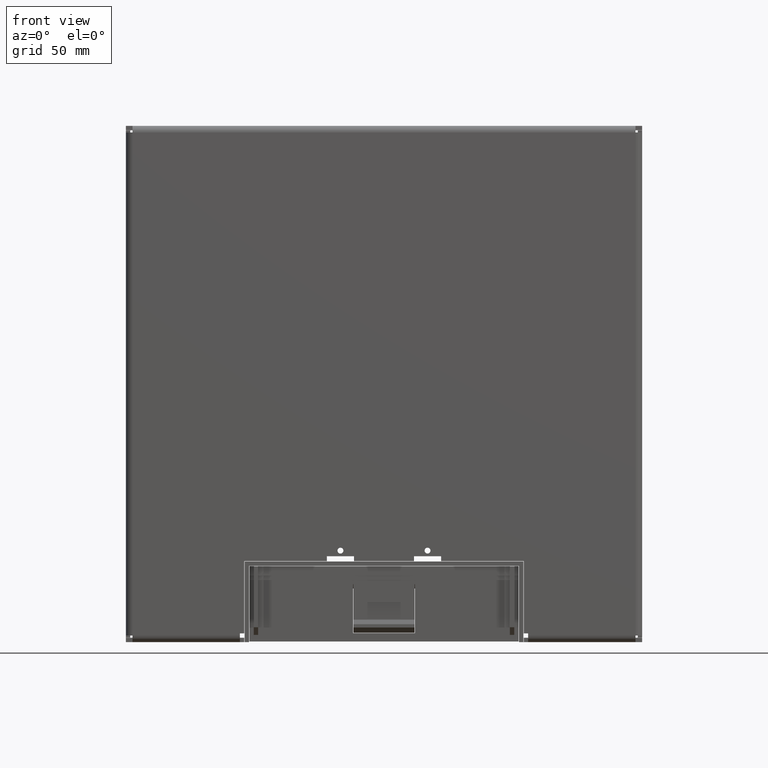
[diagram: clean part render]
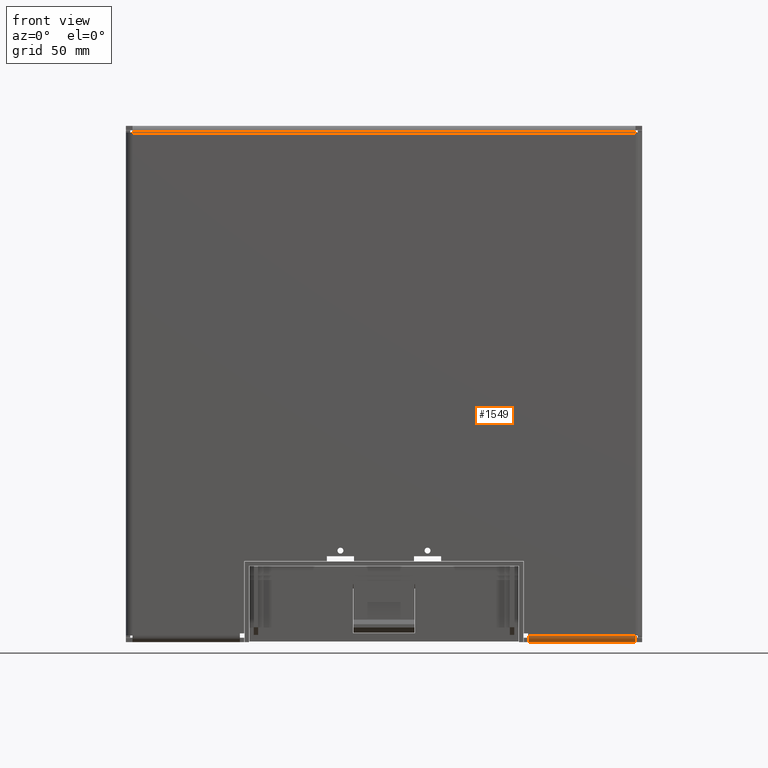
[diagram: same view with one face highlighted and labeled with its STEP entity id]
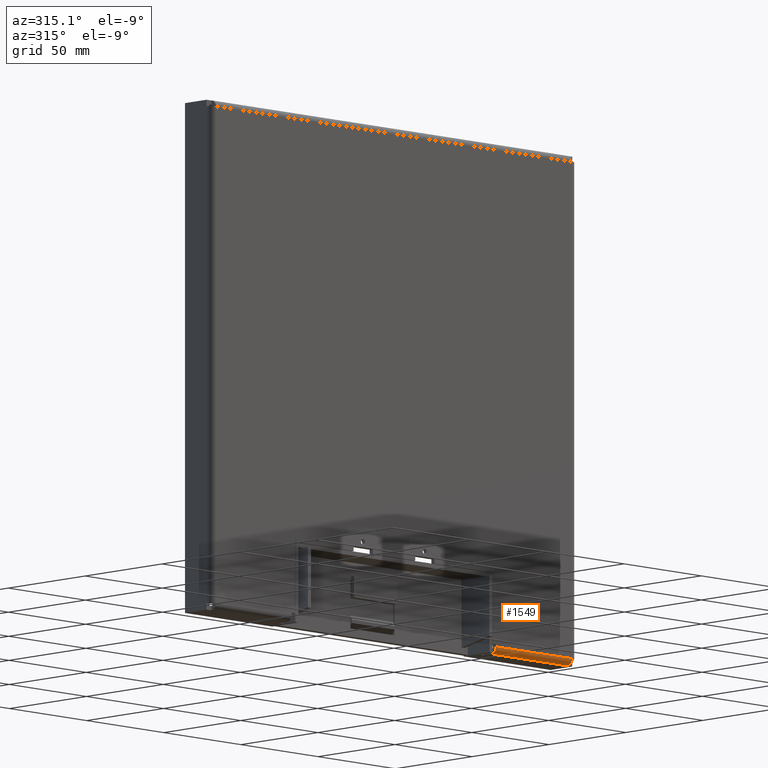
[diagram: same view with one face highlighted and labeled with its STEP entity id]
A machine part, front view. The second image highlights one B-rep face of the part: STEP entity #1549.
A second angle (auxiliary view) of the same face is appended — the face is thin or edge-on in the first view.
In plain terms, the highlighted cylindrical surface (edge-blend (fillet) strip) has radius 3 mm, axis along (-1, 0, 0).
Its self-contained STEP definition (entity closure, byte-faithful):
#497=CARTESIAN_POINT('',(6.62E1,3.E0,-1.155E2));
#498=DIRECTION('',(-1.E0,0.E0,0.E0));
#499=DIRECTION('',(0.E0,0.E0,-1.E0));
#500=AXIS2_PLACEMENT_3D('',#497,#498,#499);
#502=DIRECTION('',(1.E0,0.E0,0.E0));
#503=VECTOR('',#502,4.93E1);
#504=CARTESIAN_POINT('',(6.62E1,0.E0,-1.155E2));
#505=LINE('',#504,#503);
#506=CARTESIAN_POINT('',(1.155E2,3.E0,-1.155E2));
#507=DIRECTION('',(-1.E0,0.E0,0.E0));
#508=DIRECTION('',(0.E0,0.E0,-1.E0));
#509=AXIS2_PLACEMENT_3D('',#506,#507,#508);
#511=DIRECTION('',(-1.E0,0.E0,0.E0));
#512=VECTOR('',#511,4.93E1);
#513=CARTESIAN_POINT('',(1.155E2,3.E0,-1.185E2));
#514=LINE('',#513,#512);
#1118=CARTESIAN_POINT('',(1.155E2,0.E0,-1.155E2));
#1120=VERTEX_POINT('',#1118);
#1173=CARTESIAN_POINT('',(1.155E2,3.E0,-1.185E2));
#1175=VERTEX_POINT('',#1173);
#1213=CARTESIAN_POINT('',(6.62E1,3.E0,-1.185E2));
#1215=VERTEX_POINT('',#1213);
#1223=CARTESIAN_POINT('',(6.62E1,0.E0,-1.155E2));
#1224=VERTEX_POINT('',#1223);
#1536=CARTESIAN_POINT('',(0.E0,3.E0,-1.155E2));
#1537=DIRECTION('',(-1.E0,0.E0,0.E0));
#1538=DIRECTION('',(0.E0,0.E0,-1.E0));
#1539=AXIS2_PLACEMENT_3D('',#1536,#1537,#1538);
#1540=CYLINDRICAL_SURFACE('',#1539,3.E0);
#1541=ORIENTED_EDGE('',*,*,#1526,.T.);
#1542=ORIENTED_EDGE('',*,*,#1344,.T.);
#1544=ORIENTED_EDGE('',*,*,#1543,.F.);
#1546=ORIENTED_EDGE('',*,*,#1545,.T.);
#1547=EDGE_LOOP('',(#1541,#1542,#1544,#1546));
#1548=FACE_OUTER_BOUND('',#1547,.F.);
#501=CIRCLE('',#500,3.E0);
#510=CIRCLE('',#509,3.E0);
#1344=EDGE_CURVE('',#1224,#1120,#505,.T.);
#1526=EDGE_CURVE('',#1215,#1224,#501,.T.);
#1543=EDGE_CURVE('',#1175,#1120,#510,.T.);
#1545=EDGE_CURVE('',#1175,#1215,#514,.T.);
#1549=ADVANCED_FACE('',(#1548),#1540,.T.);